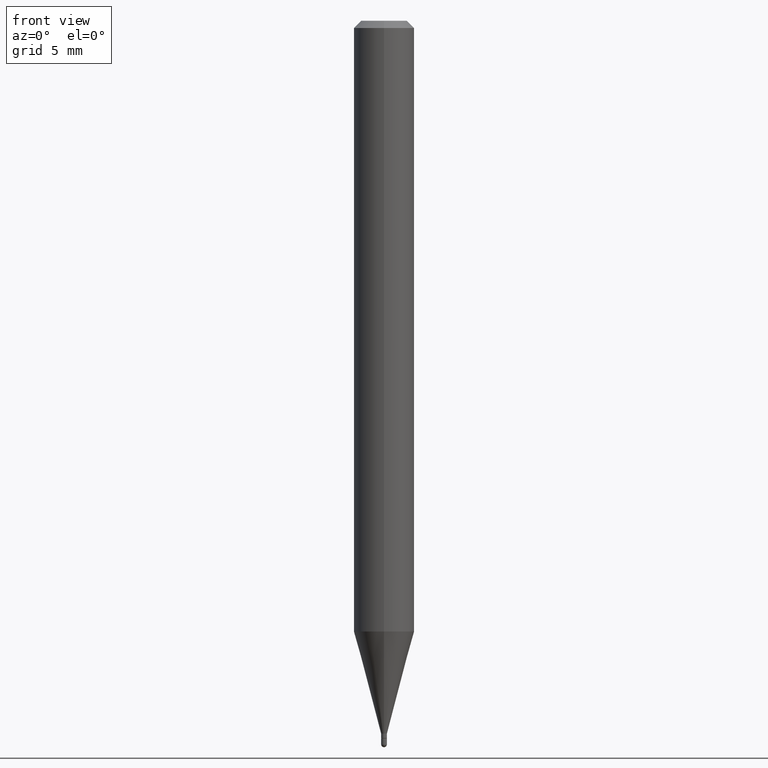
[diagram: clean part render]
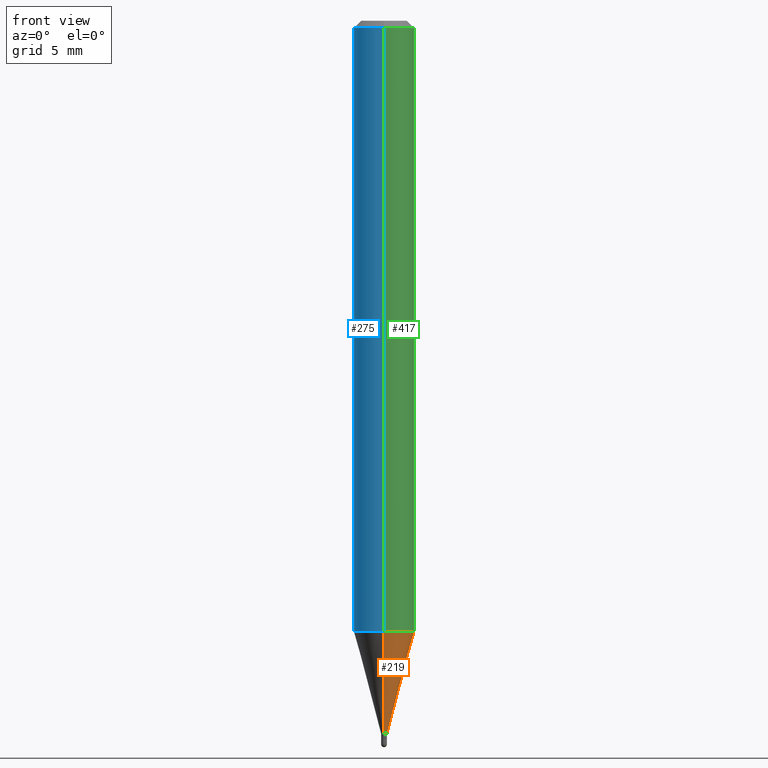
[diagram: same view with three faces highlighted in distinct colors, each labeled with its STEP entity id]
A machine part, front view with three faces highlighted in distinct colors.
Their STEP definitions:

[orange] entity #219 — the highlighted conical surface has half-angle 15 deg.
#1 = LINE ( 'NONE', #194, #245 ) ;
#2 = CARTESIAN_POINT ( 'NONE',  ( 3.599709425658781561E-29, -5.139490112842336246E-15, -1.471999999999999975 ) ) ;
#16 = CARTESIAN_POINT ( 'NONE',  ( -4.364351673553608545E-16, -0.06250000000000439926, -1.261139129372358614 ) ) ;
#17 = ORIENTED_EDGE ( 'NONE', *, *, #106, .F. ) ;
#22 = EDGE_CURVE ( 'NONE', #186, #268, #336, .T. ) ;
#40 = DIRECTION ( 'NONE',  ( 1.839019923739599921E-15, 0.2588190451025249028, 0.9659258262890670910 ) ) ;
#45 = EDGE_CURVE ( 'NONE', #337, #421, #306, .T. ) ;
#79 = CARTESIAN_POINT ( 'NONE',  ( 2.433608869978675634E-16, 0.005999999999994782944, -1.471999999999999975 ) ) ;
#106 = EDGE_CURVE ( 'NONE', #186, #337, #1, .T. ) ;
#175 = EDGE_CURVE ( 'NONE', #268, #421, #280, .T. ) ;
#186 = VERTEX_POINT ( 'NONE', #332 ) ;
#191 = CARTESIAN_POINT ( 'NONE',  ( 3.599709425658781561E-29, -5.139490112842336246E-15, -1.471999999999999975 ) ) ;
#194 = CARTESIAN_POINT ( 'NONE',  ( -4.189777606608106146E-17, -0.006000000000005062048, -1.471999999999999975 ) ) ;
#195 = DIRECTION ( 'NONE',  ( -2.445454772866020119E-29, 3.491501435354847556E-15, 1.000000000000000000 ) ) ;
#198 = DIRECTION ( 'NONE',  ( -1.807323732225329745E-15, -0.2588190451025181305, 0.9659258262890689783 ) ) ;
#209 = AXIS2_PLACEMENT_3D ( 'NONE', #191, #510, #469 ) ;
#214 = CARTESIAN_POINT ( 'NONE',  ( 4.440892098500932831E-16, 0.06249999999999558686, -1.261139129372359058 ) ) ;
#218 = VECTOR ( 'NONE', #40, 39.37007874015748143 ) ;
#219 = ADVANCED_FACE ( 'NONE', ( #394 ), #253, .T. ) ;
#224 = AXIS2_PLACEMENT_3D ( 'NONE', #356, #232, #395 ) ;
#232 = DIRECTION ( 'NONE',  ( -2.445454772866020119E-29, 3.491501435354847556E-15, 1.000000000000000000 ) ) ;
#245 = VECTOR ( 'NONE', #198, 39.37007874015748143 ) ;
#253 = CONICAL_SURFACE ( 'NONE', #209, 0.005999999999999922930, 0.2617993877991502405 ) ;
#268 = VERTEX_POINT ( 'NONE', #79 ) ;
#280 = LINE ( 'NONE', #323, #218 ) ;
#306 = CIRCLE ( 'NONE', #224, 0.06250000000000000000 ) ;
#309 = ORIENTED_EDGE ( 'NONE', *, *, #45, .F. ) ;
#323 = CARTESIAN_POINT ( 'NONE',  ( 4.263256414564144915E-17, 0.005999999999994783811, -1.471999999999999975 ) ) ;
#332 = CARTESIAN_POINT ( 'NONE',  ( -4.189777606608106146E-17, -0.006000000000005062048, -1.471999999999999975 ) ) ;
#336 = CIRCLE ( 'NONE', #450, 0.005999999999999922930 ) ;
#337 = VERTEX_POINT ( 'NONE', #16 ) ;
#356 = CARTESIAN_POINT ( 'NONE',  ( 3.084058703171732216E-29, -4.403269080385753403E-15, -1.261139129372358836 ) ) ;
#394 = FACE_OUTER_BOUND ( 'NONE', #478, .T. ) ;
#395 = DIRECTION ( 'NONE',  ( -6.982962677686265922E-15, -1.000000000000000000, 4.370956789862821150E-15 ) ) ;
#411 = ORIENTED_EDGE ( 'NONE', *, *, #175, .T. ) ;
#421 = VERTEX_POINT ( 'NONE', #214 ) ;
#429 = DIRECTION ( 'NONE',  ( -6.982962677686265922E-15, -1.000000000000000000, 0.000000000000000000 ) ) ;
#450 = AXIS2_PLACEMENT_3D ( 'NONE', #2, #195, #429 ) ;
#463 = ORIENTED_EDGE ( 'NONE', *, *, #22, .T. ) ;
#469 = DIRECTION ( 'NONE',  ( -6.982962677686265922E-15, -1.000000000000000000, 0.000000000000000000 ) ) ;
#478 = EDGE_LOOP ( 'NONE', ( #463, #411, #309, #17 ) ) ;
#510 = DIRECTION ( 'NONE',  ( -2.445454772866020119E-29, 3.491501435354847556E-15, 1.000000000000000000 ) ) ;

[blue] entity #275 — the highlighted cylindrical surface (edge-blend (fillet) strip) has radius 1.5875 mm, axis along (-0, 0, 1).
#16 = CARTESIAN_POINT ( 'NONE',  ( -4.364351673553608545E-16, -0.06250000000000439926, -1.261139129372358614 ) ) ;
#26 = CIRCLE ( 'NONE', #76, 0.06250000000000000000 ) ;
#41 = ORIENTED_EDGE ( 'NONE', *, *, #283, .T. ) ;
#42 = CYLINDRICAL_SURFACE ( 'NONE', #53, 0.06250000000000000000 ) ;
#53 = AXIS2_PLACEMENT_3D ( 'NONE', #373, #200, #248 ) ;
#62 = CARTESIAN_POINT ( 'NONE',  ( 4.440892098500625669E-16, 0.06250000000000000000, -2.182188397096779722E-16 ) ) ;
#66 = VECTOR ( 'NONE', #484, 39.37007874015748143 ) ;
#76 = AXIS2_PLACEMENT_3D ( 'NONE', #206, #339, #121 ) ;
#121 = DIRECTION ( 'NONE',  ( -6.982962677686265922E-15, -1.000000000000000000, 4.370956789862821150E-15 ) ) ;
#128 = EDGE_CURVE ( 'NONE', #145, #284, #133, .T. ) ;
#133 = CIRCLE ( 'NONE', #498, 0.06250000000000000000 ) ;
#140 = DIRECTION ( 'NONE',  ( -2.445454772866020119E-29, 3.491501435354847556E-15, 1.000000000000000000 ) ) ;
#145 = VERTEX_POINT ( 'NONE', #226 ) ;
#159 = LINE ( 'NONE', #377, #66 ) ;
#174 = ORIENTED_EDGE ( 'NONE', *, *, #128, .F. ) ;
#200 = DIRECTION ( 'NONE',  ( -2.445454772866020119E-29, 3.491501435354847556E-15, 1.000000000000000000 ) ) ;
#206 = CARTESIAN_POINT ( 'NONE',  ( 3.084058703171732216E-29, -4.403269080385753403E-15, -1.261139129372358836 ) ) ;
#214 = CARTESIAN_POINT ( 'NONE',  ( 4.440892098500932831E-16, 0.06249999999999558686, -1.261139129372359058 ) ) ;
#215 = EDGE_CURVE ( 'NONE', #421, #145, #487, .T. ) ;
#226 = CARTESIAN_POINT ( 'NONE',  ( 4.440892098500935790E-16, 0.06249999999999995143, -0.01499999999999997863 ) ) ;
#227 = DIRECTION ( 'NONE',  ( -6.982962677686265922E-15, -1.000000000000000000, 3.483106191921935554E-15 ) ) ;
#230 = DIRECTION ( 'NONE',  ( -2.445454772866019838E-29, 3.491501435354847556E-15, 1.000000000000000000 ) ) ;
#248 = DIRECTION ( 'NONE',  ( -6.982962677686265922E-15, -1.000000000000000000, 3.491501435354847556E-15 ) ) ;
#275 = ADVANCED_FACE ( 'NONE', ( #408 ), #42, .T. ) ;
#277 = EDGE_LOOP ( 'NONE', ( #288, #404, #41, #174 ) ) ;
#283 = EDGE_CURVE ( 'NONE', #337, #284, #159, .T. ) ;
#284 = VERTEX_POINT ( 'NONE', #296 ) ;
#288 = ORIENTED_EDGE ( 'NONE', *, *, #215, .F. ) ;
#296 = CARTESIAN_POINT ( 'NONE',  ( -4.364351673553912750E-16, -0.06250000000000005551, -0.01499999999999954321 ) ) ;
#299 = EDGE_CURVE ( 'NONE', #421, #337, #26, .T. ) ;
#337 = VERTEX_POINT ( 'NONE', #16 ) ;
#339 = DIRECTION ( 'NONE',  ( -2.445454772866020119E-29, 3.491501435354847556E-15, 1.000000000000000000 ) ) ;
#344 = VECTOR ( 'NONE', #230, 39.37007874015748143 ) ;
#373 = CARTESIAN_POINT ( 'NONE',  ( 0.000000000000000000, 0.000000000000000000, 0.000000000000000000 ) ) ;
#377 = CARTESIAN_POINT ( 'NONE',  ( -4.364351673553916201E-16, -0.06250000000000000000, 2.182188397096779722E-16 ) ) ;
#404 = ORIENTED_EDGE ( 'NONE', *, *, #299, .T. ) ;
#408 = FACE_OUTER_BOUND ( 'NONE', #277, .T. ) ;
#421 = VERTEX_POINT ( 'NONE', #214 ) ;
#484 = DIRECTION ( 'NONE',  ( -2.445454772866019838E-29, 3.491501435354847556E-15, 1.000000000000000000 ) ) ;
#487 = LINE ( 'NONE', #62, #344 ) ;
#498 = AXIS2_PLACEMENT_3D ( 'NONE', #499, #140, #227 ) ;
#499 = CARTESIAN_POINT ( 'NONE',  ( 3.668182159298971253E-31, -5.237252153032187986E-17, -0.01499999999999976179 ) ) ;

[green] entity #417 — the highlighted cylindrical surface (edge-blend (fillet) strip) has radius 1.5875 mm, axis along (-0, 0, 1).
#16 = CARTESIAN_POINT ( 'NONE',  ( -4.364351673553608545E-16, -0.06250000000000439926, -1.261139129372358614 ) ) ;
#45 = EDGE_CURVE ( 'NONE', #337, #421, #306, .T. ) ;
#62 = CARTESIAN_POINT ( 'NONE',  ( 4.440892098500625669E-16, 0.06250000000000000000, -2.182188397096779722E-16 ) ) ;
#66 = VECTOR ( 'NONE', #484, 39.37007874015748143 ) ;
#117 = EDGE_CURVE ( 'NONE', #284, #145, #147, .T. ) ;
#135 = CARTESIAN_POINT ( 'NONE',  ( 3.668182159298971253E-31, -5.237252153032187986E-17, -0.01499999999999976179 ) ) ;
#145 = VERTEX_POINT ( 'NONE', #226 ) ;
#147 = CIRCLE ( 'NONE', #354, 0.06250000000000000000 ) ;
#158 = CYLINDRICAL_SURFACE ( 'NONE', #390, 0.06250000000000000000 ) ;
#159 = LINE ( 'NONE', #377, #66 ) ;
#180 = DIRECTION ( 'NONE',  ( -2.445454772866020119E-29, 3.491501435354847556E-15, 1.000000000000000000 ) ) ;
#214 = CARTESIAN_POINT ( 'NONE',  ( 4.440892098500932831E-16, 0.06249999999999558686, -1.261139129372359058 ) ) ;
#215 = EDGE_CURVE ( 'NONE', #421, #145, #487, .T. ) ;
#224 = AXIS2_PLACEMENT_3D ( 'NONE', #356, #232, #395 ) ;
#226 = CARTESIAN_POINT ( 'NONE',  ( 4.440892098500935790E-16, 0.06249999999999995143, -0.01499999999999997863 ) ) ;
#230 = DIRECTION ( 'NONE',  ( -2.445454772866019838E-29, 3.491501435354847556E-15, 1.000000000000000000 ) ) ;
#232 = DIRECTION ( 'NONE',  ( -2.445454772866020119E-29, 3.491501435354847556E-15, 1.000000000000000000 ) ) ;
#241 = EDGE_LOOP ( 'NONE', ( #329, #318, #386, #369 ) ) ;
#283 = EDGE_CURVE ( 'NONE', #337, #284, #159, .T. ) ;
#284 = VERTEX_POINT ( 'NONE', #296 ) ;
#291 = FACE_OUTER_BOUND ( 'NONE', #241, .T. ) ;
#296 = CARTESIAN_POINT ( 'NONE',  ( -4.364351673553912750E-16, -0.06250000000000005551, -0.01499999999999954321 ) ) ;
#297 = DIRECTION ( 'NONE',  ( -2.445454772866020119E-29, 3.491501435354847556E-15, 1.000000000000000000 ) ) ;
#306 = CIRCLE ( 'NONE', #224, 0.06250000000000000000 ) ;
#318 = ORIENTED_EDGE ( 'NONE', *, *, #215, .T. ) ;
#329 = ORIENTED_EDGE ( 'NONE', *, *, #45, .T. ) ;
#337 = VERTEX_POINT ( 'NONE', #16 ) ;
#344 = VECTOR ( 'NONE', #230, 39.37007874015748143 ) ;
#349 = DIRECTION ( 'NONE',  ( -6.982962677686265922E-15, -1.000000000000000000, 3.483106191921935554E-15 ) ) ;
#354 = AXIS2_PLACEMENT_3D ( 'NONE', #135, #180, #349 ) ;
#356 = CARTESIAN_POINT ( 'NONE',  ( 3.084058703171732216E-29, -4.403269080385753403E-15, -1.261139129372358836 ) ) ;
#369 = ORIENTED_EDGE ( 'NONE', *, *, #283, .F. ) ;
#377 = CARTESIAN_POINT ( 'NONE',  ( -4.364351673553916201E-16, -0.06250000000000000000, 2.182188397096779722E-16 ) ) ;
#386 = ORIENTED_EDGE ( 'NONE', *, *, #117, .F. ) ;
#390 = AXIS2_PLACEMENT_3D ( 'NONE', #409, #297, #443 ) ;
#395 = DIRECTION ( 'NONE',  ( -6.982962677686265922E-15, -1.000000000000000000, 4.370956789862821150E-15 ) ) ;
#409 = CARTESIAN_POINT ( 'NONE',  ( 0.000000000000000000, 0.000000000000000000, 0.000000000000000000 ) ) ;
#417 = ADVANCED_FACE ( 'NONE', ( #291 ), #158, .T. ) ;
#421 = VERTEX_POINT ( 'NONE', #214 ) ;
#443 = DIRECTION ( 'NONE',  ( -6.982962677686265922E-15, -1.000000000000000000, 3.491501435354847556E-15 ) ) ;
#484 = DIRECTION ( 'NONE',  ( -2.445454772866019838E-29, 3.491501435354847556E-15, 1.000000000000000000 ) ) ;
#487 = LINE ( 'NONE', #62, #344 ) ;